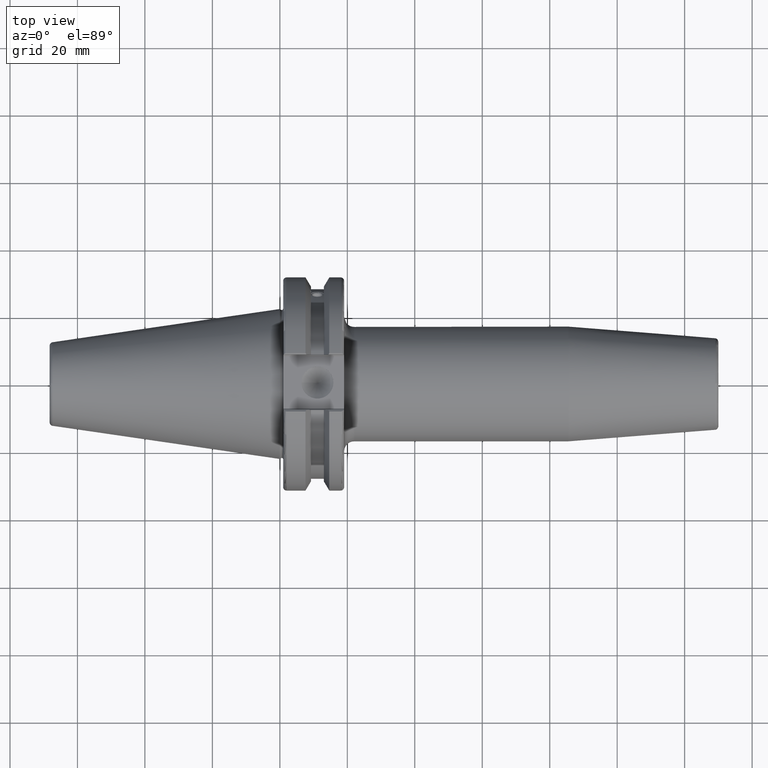
[diagram: clean part render]
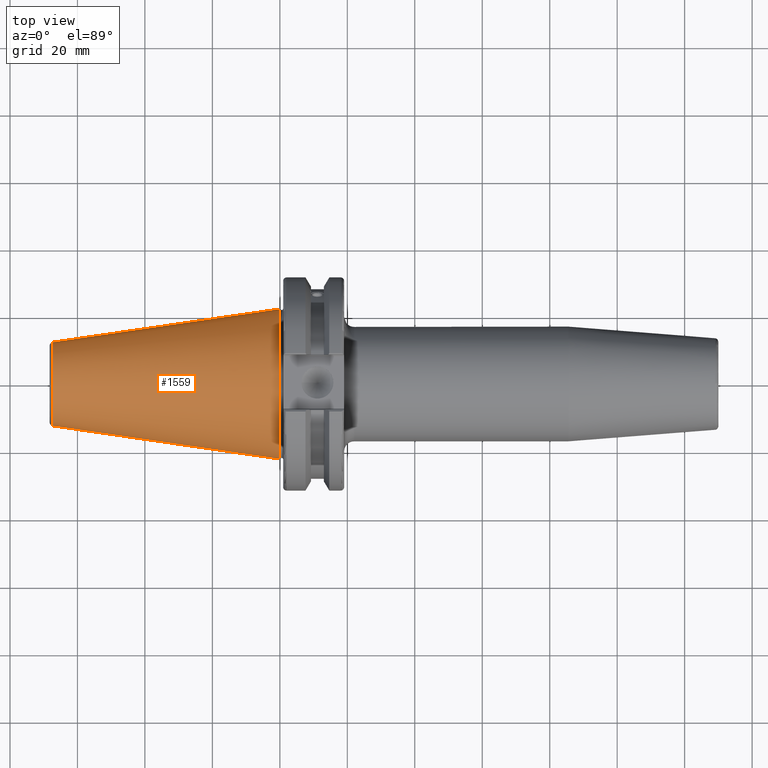
[diagram: same view with one face highlighted and labeled with its STEP entity id]
A machine part, top view. The second image highlights one B-rep face of the part: STEP entity #1559.
In plain terms, the highlighted conical surface has half-angle 8.297 deg.
Its self-contained STEP definition (entity closure, byte-faithful):
#234=FACE_OUTER_BOUND('',#338,.T.);
#338=EDGE_LOOP('',(#1355,#1356,#1357,#1358,#1359));
#445=LINE('',#2999,#538);
#538=VECTOR('',#2154,17.2484375);
#611=CIRCLE('',#1745,12.3966635780937);
#612=CIRCLE('',#1746,12.3966635780937);
#616=CIRCLE('',#1752,22.225);
#772=VERTEX_POINT('',#2986);
#773=VERTEX_POINT('',#2987);
#776=VERTEX_POINT('',#2997);
#982=EDGE_CURVE('',#772,#773,#611,.T.);
#983=EDGE_CURVE('',#773,#772,#612,.T.);
#987=EDGE_CURVE('',#776,#776,#616,.T.);
#988=EDGE_CURVE('',#776,#773,#445,.T.);
#1355=ORIENTED_EDGE('',*,*,#987,.F.);
#1356=ORIENTED_EDGE('',*,*,#988,.T.);
#1357=ORIENTED_EDGE('',*,*,#982,.F.);
#1358=ORIENTED_EDGE('',*,*,#983,.F.);
#1359=ORIENTED_EDGE('',*,*,#988,.F.);
#1494=CONICAL_SURFACE('',#1751,17.2484375,0.144812498238939);
#1559=ADVANCED_FACE('',(#234),#1494,.T.);
#1745=AXIS2_PLACEMENT_3D('',#2988,#2138,#2139);
#1746=AXIS2_PLACEMENT_3D('',#2989,#2140,#2141);
#1751=AXIS2_PLACEMENT_3D('',#2996,#2150,#2151);
#1752=AXIS2_PLACEMENT_3D('',#2998,#2152,#2153);
#2138=DIRECTION('center_axis',(-1.,0.,0.));
#2139=DIRECTION('ref_axis',(0.,-1.,3.06161699786838E-17));
#2140=DIRECTION('center_axis',(-1.,0.,0.));
#2141=DIRECTION('ref_axis',(0.,-1.,3.06161699786838E-17));
#2150=DIRECTION('center_axis',(1.,0.,0.));
#2151=DIRECTION('ref_axis',(0.,1.,0.));
#2152=DIRECTION('center_axis',(1.,0.,0.));
#2153=DIRECTION('ref_axis',(0.,0.,-1.));
#2154=DIRECTION('',(-0.989532981063282,0.144306893071729,1.76724974695192E-17));
#2986=CARTESIAN_POINT('',(-67.3943068930717,-1.5181534371019E-15,12.3966635780937));
#2987=CARTESIAN_POINT('',(-67.3943068930718,-12.3966635780937,-1.5181534371019E-15));
#2988=CARTESIAN_POINT('Origin',(-67.3943068930717,0.,-1.89769179637738E-15));
#2989=CARTESIAN_POINT('Origin',(-67.3943068930717,0.,-1.89769179637738E-15));
#2996=CARTESIAN_POINT('Origin',(-34.125,0.,0.));
#2997=CARTESIAN_POINT('',(0.,-22.225,-2.72177751110499E-15));
#2998=CARTESIAN_POINT('Origin',(0.,0.,0.));
#2999=CARTESIAN_POINT('',(-34.125,-17.2484375,-2.11232437746682E-15));